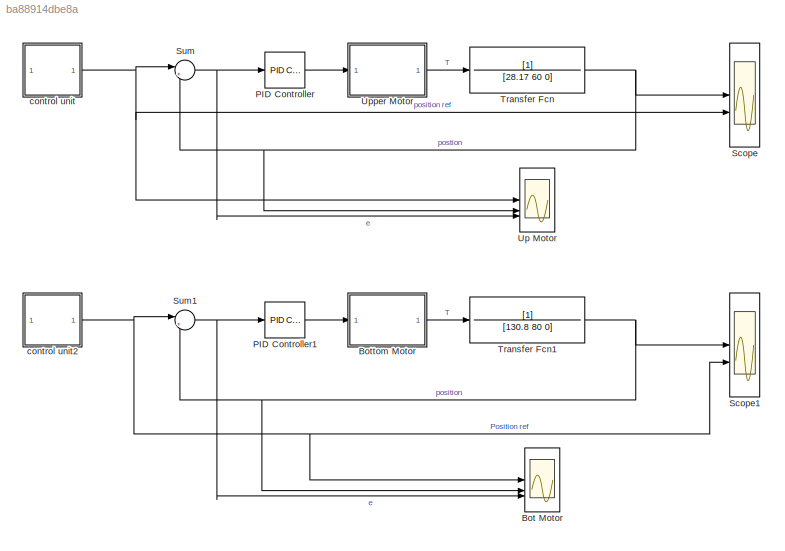
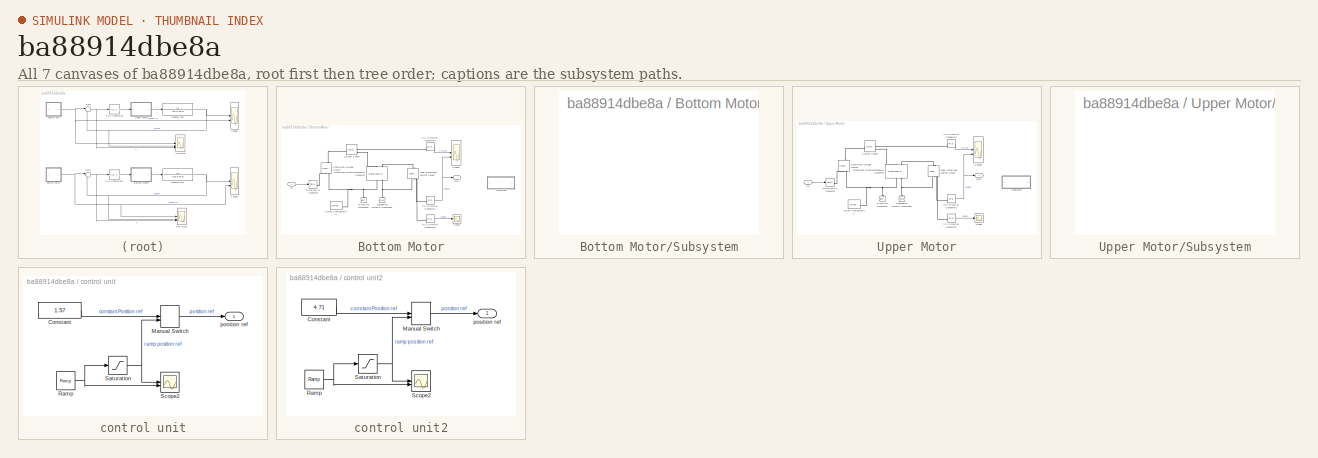
[diagram: thumbnail index - all 7 canvases of the model, root first then tree order]
MODEL slx_ba88914dbe8a
KIND model
CONFIG AbsTol = auto
CONFIG EnableMultiTasking = off
CONFIG FixedStep = auto
CONFIG MaxStep = auto
CONFIG MinStep = auto
CONFIG RelTol = 1e-3
CONFIG SampleTimeConstraint = Unconstrained
CONFIG SolverName = VariableStepAuto
CONFIG StartTime = 0.0
CONFIG StopTime = 27
BLOCK [Scope] Bot Motor
  Floating = off
  NumInputPorts = 3
  ScopeSpecificationString = Simulink.scopes.TimeScopeBlockCfg('CurrentConfiguration', extmgr.ConfigurationSet(extmgr.Configuration('Core','General UI',true),extmgr.Configuration('Core','Source UI',true),extmgr.Configuration('Sources','WiredSimulink',true,'DataLoggingVariableName','ScopeData2'),extmgr.Configuration('Visuals','Time Domain',true,'SerializedDisplays',{struct('MinYLimReal','-1.29803','MaxYLimReal','6.00803','YLab...<+1413ch>
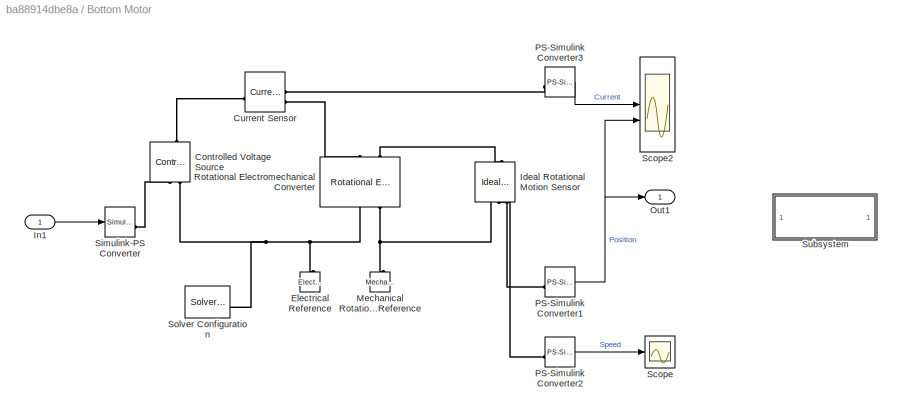
BLOCK [SubSystem] Bottom Motor
BLOCK [Reference] Bottom Motor/Controlled Voltage Source  REF=fl_lib/Electrical/Electrical Sources/Controlled Voltage
Source
  NameLocation = right
  SourceBlock = fl_lib/Electrical/Electrical Sources/Controlled Voltage\nSource
  SourceType = Controlled Voltage\nSource
BLOCK [Reference] Bottom Motor/Current Sensor  REF=fl_lib/Electrical/Electrical Sensors/Current Sensor
  SourceBlock = fl_lib/Electrical/Electrical Sensors/Current Sensor
  SourceType = Current Sensor
BLOCK [Reference] Bottom Motor/Electrical Reference  REF=fl_lib/Electrical/Electrical Elements/Electrical Reference
  NameLocation = right
  SourceBlock = fl_lib/Electrical/Electrical Elements/Electrical Reference
  SourceType = Electrical Reference
BLOCK [Reference] Bottom Motor/Ideal Rotational Motion Sensor  REF=fl_lib/Mechanical/Mechanical Sensors/Ideal Rotational
Motion Sensor
  NameLocation = left
  SourceBlock = fl_lib/Mechanical/Mechanical Sensors/Ideal Rotational\nMotion Sensor
  SourceType = Ideal Rotational\nMotion Sensor
BLOCK [Inport] Bottom Motor/In1
BLOCK [Reference] Bottom Motor/Mechanical Rotational Reference  REF=fl_lib/Mechanical/Rotational Elements/Mechanical
Rotational Reference
  NameLocation = right
  SourceBlock = fl_lib/Mechanical/Rotational Elements/Mechanical\nRotational Reference
  SourceType = Mechanical\nRotational Reference
BLOCK [Outport] Bottom Motor/Out1
  VectorParamsAs1DForOutWhenUnconnected = off
BLOCK [Reference] Bottom Motor/PS-Simulink Converter1  REF=nesl_utility/PS-Simulink
Converter
  SourceBlock = nesl_utility/PS-Simulink\nConverter
  SourceType = PS-Simulink\nConverter
BLOCK [Reference] Bottom Motor/PS-Simulink Converter2  REF=nesl_utility/PS-Simulink
Converter
  SourceBlock = nesl_utility/PS-Simulink\nConverter
  SourceType = PS-Simulink\nConverter
BLOCK [Reference] Bottom Motor/PS-Simulink Converter3  REF=nesl_utility/PS-Simulink
Converter
  SourceBlock = nesl_utility/PS-Simulink\nConverter
  SourceType = PS-Simulink\nConverter
BLOCK [Reference] Bottom Motor/Rotational Electromechanical Converter  REF=fl_lib/Electrical/Electrical Elements/Rotational
Electromechanical
Converter
  NameLocation = right
  SourceBlock = fl_lib/Electrical/Electrical Elements/Rotational\nElectromechanical\nConverter
  SourceType = Rotational\nElectromechanical\nConverter
BLOCK [Scope] Bottom Motor/Scope
  Floating = off
  NumInputPorts = 1
  ScopeSpecificationString = Simulink.scopes.TimeScopeBlockCfg('CurrentConfiguration', extmgr.ConfigurationSet(extmgr.Configuration('Core','General UI',true),extmgr.Configuration('Core','Source UI',true),extmgr.Configuration('Sources','WiredSimulink',true,'DataLoggingVariableName','ScopeData1'),extmgr.Configuration('Visuals','Time Domain',true,'SerializedDisplays',{struct('MinYLimReal','-4.04575','MaxYLimReal','3.50508','YLab...<+1364ch>
BLOCK [Scope] Bottom Motor/Scope2
  Floating = off
  NumInputPorts = 2
  ScopeSpecificationString = Simulink.scopes.TimeScopeBlockCfg('CurrentConfiguration', extmgr.ConfigurationSet(extmgr.Configuration('Core','General UI',true),extmgr.Configuration('Core','Source UI',true),extmgr.Configuration('Sources','WiredSimulink',true,'DataLoggingVariableName','ScopeData2'),extmgr.Configuration('Visuals','Time Domain',true,'SerializedDisplays',{struct('MinYLimReal','-3.04651','MaxYLimReal','27.4186','YLab...<+1377ch>
BLOCK [Reference] Bottom Motor/Simulink-PS Converter  REF=nesl_utility/Simulink-PS
Converter
  SourceBlock = nesl_utility/Simulink-PS\nConverter
  SourceType = Simulink-PS\nConverter
BLOCK [Reference] Bottom Motor/Solver Configuration  REF=nesl_utility/Solver
Configuration
  SourceBlock = nesl_utility/Solver\nConfiguration
  SourceType = Solver\nConfiguration
BLOCK [SubSystem] Bottom Motor/Subsystem
  OpenFcn = open_system('simscape')
  ShowPortLabels = none
BLOCK [Reference] PID Controller  REF=slpidlib/PID Controller
  SourceBlock = slpidlib/PID Controller
  SourceType = PID 1dof
BLOCK [Reference] PID Controller1  REF=slpidlib/PID Controller
  SourceBlock = slpidlib/PID Controller
  SourceType = PID 1dof
BLOCK [Scope] Scope
  Floating = off
  NumInputPorts = 2
  ScopeSpecificationString = Simulink.scopes.TimeScopeBlockCfg('CurrentConfiguration', extmgr.ConfigurationSet(extmgr.Configuration('Core','General UI',true),extmgr.Configuration('Core','Source UI',true),extmgr.Configuration('Sources','WiredSimulink',true),extmgr.Configuration('Visuals','Time Domain',true,'SerializedDisplays',{struct('MinYLimReal','-0.21441','MaxYLimReal','1.9297','YLabelReal','','MinYLimMag','0.00000','MaxYL...<+1365ch>
BLOCK [Scope] Scope1
  Floating = off
  NumInputPorts = 2
  ScopeSpecificationString = Simulink.scopes.TimeScopeBlockCfg('CurrentConfiguration', extmgr.ConfigurationSet(extmgr.Configuration('Core','General UI',true),extmgr.Configuration('Core','Source UI',true),extmgr.Configuration('Sources','WiredSimulink',true,'DataLoggingVariableName','ScopeData1'),extmgr.Configuration('Visuals','Time Domain',true,'SerializedDisplays',{struct('MinYLimReal','-0.65968','MaxYLimReal','5.9371','YLabe...<+1405ch>
BLOCK [Sum] Sum
  Inputs = |+-
BLOCK [Sum] Sum1
  Inputs = |+-
BLOCK [TransferFcn] Transfer Fcn
  Denominator = [28.17 60 0]
BLOCK [TransferFcn] Transfer Fcn1
  Denominator = [130.8 80 0]
BLOCK [Scope] Up Motor
  Floating = off
  NumInputPorts = 3
  ScopeSpecificationString = Simulink.scopes.TimeScopeBlockCfg('CurrentConfiguration', extmgr.ConfigurationSet(extmgr.Configuration('Core','General UI',true),extmgr.Configuration('Core','Source UI',true),extmgr.Configuration('Sources','WiredSimulink',true,'DataLoggingVariableName','ScopeData2'),extmgr.Configuration('Visuals','Time Domain',true,'SerializedDisplays',{struct('MinYLimReal','-0.37786','MaxYLimReal','1.94786','YLab...<+1437ch>
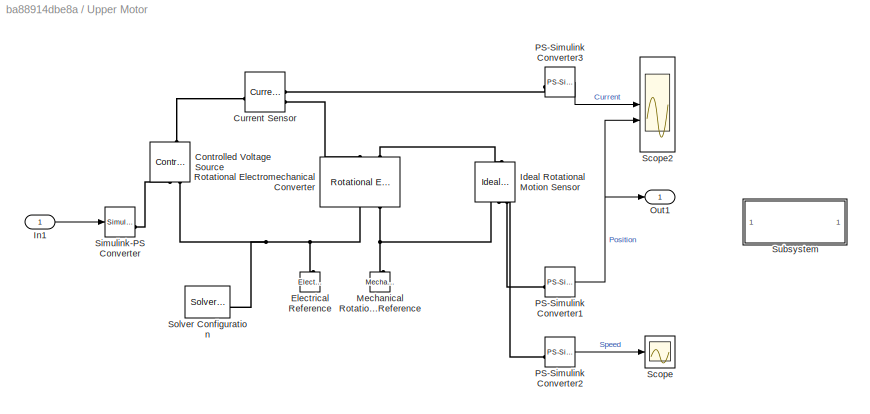
BLOCK [SubSystem] Upper Motor
BLOCK [Reference] Upper Motor/Controlled Voltage Source  REF=fl_lib/Electrical/Electrical Sources/Controlled Voltage
Source
  NameLocation = right
  SourceBlock = fl_lib/Electrical/Electrical Sources/Controlled Voltage\nSource
  SourceType = Controlled Voltage\nSource
BLOCK [Reference] Upper Motor/Current Sensor  REF=fl_lib/Electrical/Electrical Sensors/Current Sensor
  SourceBlock = fl_lib/Electrical/Electrical Sensors/Current Sensor
  SourceType = Current Sensor
BLOCK [Reference] Upper Motor/Electrical Reference  REF=fl_lib/Electrical/Electrical Elements/Electrical Reference
  NameLocation = right
  SourceBlock = fl_lib/Electrical/Electrical Elements/Electrical Reference
  SourceType = Electrical Reference
BLOCK [Reference] Upper Motor/Ideal Rotational Motion Sensor  REF=fl_lib/Mechanical/Mechanical Sensors/Ideal Rotational
Motion Sensor
  NameLocation = left
  SourceBlock = fl_lib/Mechanical/Mechanical Sensors/Ideal Rotational\nMotion Sensor
  SourceType = Ideal Rotational\nMotion Sensor
BLOCK [Inport] Upper Motor/In1
BLOCK [Reference] Upper Motor/Mechanical Rotational Reference  REF=fl_lib/Mechanical/Rotational Elements/Mechanical
Rotational Reference
  NameLocation = right
  SourceBlock = fl_lib/Mechanical/Rotational Elements/Mechanical\nRotational Reference
  SourceType = Mechanical\nRotational Reference
BLOCK [Outport] Upper Motor/Out1
  VectorParamsAs1DForOutWhenUnconnected = off
BLOCK [Reference] Upper Motor/PS-Simulink Converter1  REF=nesl_utility/PS-Simulink
Converter
  SourceBlock = nesl_utility/PS-Simulink\nConverter
  SourceType = PS-Simulink\nConverter
BLOCK [Reference] Upper Motor/PS-Simulink Converter2  REF=nesl_utility/PS-Simulink
Converter
  SourceBlock = nesl_utility/PS-Simulink\nConverter
  SourceType = PS-Simulink\nConverter
BLOCK [Reference] Upper Motor/PS-Simulink Converter3  REF=nesl_utility/PS-Simulink
Converter
  SourceBlock = nesl_utility/PS-Simulink\nConverter
  SourceType = PS-Simulink\nConverter
BLOCK [Reference] Upper Motor/Rotational Electromechanical Converter  REF=fl_lib/Electrical/Electrical Elements/Rotational
Electromechanical
Converter
  NameLocation = right
  SourceBlock = fl_lib/Electrical/Electrical Elements/Rotational\nElectromechanical\nConverter
  SourceType = Rotational\nElectromechanical\nConverter
BLOCK [Scope] Upper Motor/Scope
  Floating = off
  NumInputPorts = 1
  ScopeSpecificationString = Simulink.scopes.TimeScopeBlockCfg('CurrentConfiguration', extmgr.ConfigurationSet(extmgr.Configuration('Core','General UI',true),extmgr.Configuration('Core','Source UI',true),extmgr.Configuration('Sources','WiredSimulink',true,'DataLoggingVariableName','ScopeData1'),extmgr.Configuration('Visuals','Time Domain',true,'SerializedDisplays',{struct('MinYLimReal','-3090.84958','MaxYLimReal','26337.95028...<+1390ch>
BLOCK [Scope] Upper Motor/Scope2
  Floating = off
  NumInputPorts = 2
  ScopeSpecificationString = Simulink.scopes.TimeScopeBlockCfg('CurrentConfiguration', extmgr.ConfigurationSet(extmgr.Configuration('Core','General UI',true),extmgr.Configuration('Core','Source UI',true),extmgr.Configuration('Sources','WiredSimulink',true,'DataLoggingVariableName','ScopeData2'),extmgr.Configuration('Visuals','Time Domain',true,'SerializedDisplays',{struct('MinYLimReal','-78.78746','MaxYLimReal','166.13849','Y...<+1414ch>
BLOCK [Reference] Upper Motor/Simulink-PS Converter  REF=nesl_utility/Simulink-PS
Converter
  SourceBlock = nesl_utility/Simulink-PS\nConverter
  SourceType = Simulink-PS\nConverter
BLOCK [Reference] Upper Motor/Solver Configuration  REF=nesl_utility/Solver
Configuration
  SourceBlock = nesl_utility/Solver\nConfiguration
  SourceType = Solver\nConfiguration
BLOCK [SubSystem] Upper Motor/Subsystem
  OpenFcn = open_system('simscape')
  ShowPortLabels = none
BLOCK [SubSystem] control unit
BLOCK [Constant] control unit/Constant
  Value = 1.57
BLOCK [ManualSwitch] control unit/Manual Switch
BLOCK [Reference] control unit/Ramp  REF=simulink/Sources/Ramp
  SourceBlock = simulink/Sources/Ramp
  SourceType = Ramp
BLOCK [Saturate] control unit/Saturation
  LowerLimit = 0.5
  UpperLimit = 1.5
BLOCK [Scope] control unit/Scope2
  Floating = off
  NumInputPorts = 2
  ScopeSpecificationString = Simulink.scopes.TimeScopeBlockCfg('CurrentConfiguration', extmgr.ConfigurationSet(extmgr.Configuration('Core','General UI',true),extmgr.Configuration('Core','Source UI',true),extmgr.Configuration('Sources','WiredSimulink',true,'DataLoggingVariableName','ScopeData1'),extmgr.Configuration('Visuals','Time Domain',true,'SerializedDisplays',{struct('MinYLimReal','-1.21875','MaxYLimReal','10.96875','YLa...<+1459ch>
BLOCK [Outport] control unit/position ref
  VectorParamsAs1DForOutWhenUnconnected = off
BLOCK [SubSystem] control unit2
BLOCK [Constant] control unit2/Constant
  Value = 4.71
BLOCK [ManualSwitch] control unit2/Manual Switch
BLOCK [Reference] control unit2/Ramp  REF=simulink/Sources/Ramp
  SourceBlock = simulink/Sources/Ramp
  SourceType = Ramp
BLOCK [Saturate] control unit2/Saturation
  LowerLimit = 0.5
  UpperLimit = 1.5
BLOCK [Scope] control unit2/Scope2
  Floating = off
  NumInputPorts = 2
  ScopeSpecificationString = Simulink.scopes.TimeScopeBlockCfg('CurrentConfiguration', extmgr.ConfigurationSet(extmgr.Configuration('Core','General UI',true),extmgr.Configuration('Core','Source UI',true),extmgr.Configuration('Sources','WiredSimulink',true,'DataLoggingVariableName','ScopeData1'),extmgr.Configuration('Visuals','Time Domain',true,'SerializedDisplays',{struct('MinYLimReal','-8.125','MaxYLimReal','73.125','YLabelR...<+1447ch>
BLOCK [Outport] control unit2/position ref
  VectorParamsAs1DForOutWhenUnconnected = off
LINE Bottom Motor/In1:1 -> Bottom Motor/Simulink-PS Converter:1
NET Bottom Motor/PS-Simulink Converter1:1 -> Bottom Motor/Out1:1, Bottom Motor/Scope2:2
LINE Bottom Motor/PS-Simulink Converter2:1 -> Bottom Motor/Scope:1
LINE Bottom Motor/PS-Simulink Converter3:1 -> Bottom Motor/Scope2:1
LINE Bottom Motor:1 -> Transfer Fcn1:1
LINE PID Controller1:1 -> Bottom Motor:1
LINE PID Controller:1 -> Upper Motor:1
NET Sum1:1 -> Bot Motor:3, PID Controller1:1
NET Sum:1 -> PID Controller:1, Up Motor:3
NET Transfer Fcn1:1 -> Bot Motor:2, Scope1:1, Sum1:2
NET Transfer Fcn:1 -> Scope:1, Sum:2, Up Motor:2
LINE Upper Motor/In1:1 -> Upper Motor/Simulink-PS Converter:1
NET Upper Motor/PS-Simulink Converter1:1 -> Upper Motor/Out1:1, Upper Motor/Scope2:2
LINE Upper Motor/PS-Simulink Converter2:1 -> Upper Motor/Scope:1
LINE Upper Motor/PS-Simulink Converter3:1 -> Upper Motor/Scope2:1
LINE Upper Motor:1 -> Transfer Fcn:1
LINE control unit/Constant:1 -> control unit/Manual Switch:1
LINE control unit/Manual Switch:1 -> control unit/position ref:1
NET control unit/Ramp:1 -> control unit/Saturation:1, control unit/Scope2:2
NET control unit/Saturation:1 -> control unit/Manual Switch:2, control unit/Scope2:1
LINE control unit2/Constant:1 -> control unit2/Manual Switch:1
LINE control unit2/Manual Switch:1 -> control unit2/position ref:1
NET control unit2/Ramp:1 -> control unit2/Saturation:1, control unit2/Scope2:2
NET control unit2/Saturation:1 -> control unit2/Manual Switch:2, control unit2/Scope2:1
NET control unit2:1 -> Bot Motor:1, Scope1:2, Sum1:1
NET control unit:1 -> Scope:2, Sum:1, Up Motor:1
PLINE Bottom Motor/Controlled Voltage Source:LConn1 -- Bottom Motor/Current Sensor:LConn1
PLINE Bottom Motor/Controlled Voltage Source:RConn1 -- Bottom Motor/Simulink-PS Converter:RConn1
PNET net1: Bottom Motor/Controlled Voltage Source:RConn2 -- Bottom Motor/Electrical Reference:LConn1 -- Bottom Motor/Rotational Electromechanical Converter:RConn1 -- Bottom Motor/Solver Configuration:RConn1
PLINE Bottom Motor/Current Sensor:RConn1 -- Bottom Motor/PS-Simulink Converter3:LConn1
PLINE Bottom Motor/Current Sensor:RConn2 -- Bottom Motor/Rotational Electromechanical Converter:LConn1
PLINE Bottom Motor/Ideal Rotational Motion Sensor:LConn1 -- Bottom Motor/Rotational Electromechanical Converter:LConn2
PNET net2: Bottom Motor/Ideal Rotational Motion Sensor:RConn1 -- Bottom Motor/Mechanical Rotational Reference:LConn1 -- Bottom Motor/Rotational Electromechanical Converter:RConn2
PLINE Bottom Motor/Ideal Rotational Motion Sensor:RConn2 -- Bottom Motor/PS-Simulink Converter2:LConn1
PLINE Bottom Motor/Ideal Rotational Motion Sensor:RConn3 -- Bottom Motor/PS-Simulink Converter1:LConn1
PLINE Upper Motor/Controlled Voltage Source:LConn1 -- Upper Motor/Current Sensor:LConn1
PLINE Upper Motor/Controlled Voltage Source:RConn1 -- Upper Motor/Simulink-PS Converter:RConn1
PNET net3: Upper Motor/Controlled Voltage Source:RConn2 -- Upper Motor/Electrical Reference:LConn1 -- Upper Motor/Rotational Electromechanical Converter:RConn1 -- Upper Motor/Solver Configuration:RConn1
PLINE Upper Motor/Current Sensor:RConn1 -- Upper Motor/PS-Simulink Converter3:LConn1
PLINE Upper Motor/Current Sensor:RConn2 -- Upper Motor/Rotational Electromechanical Converter:LConn1
PLINE Upper Motor/Ideal Rotational Motion Sensor:LConn1 -- Upper Motor/Rotational Electromechanical Converter:LConn2
PNET net4: Upper Motor/Ideal Rotational Motion Sensor:RConn1 -- Upper Motor/Mechanical Rotational Reference:LConn1 -- Upper Motor/Rotational Electromechanical Converter:RConn2
PLINE Upper Motor/Ideal Rotational Motion Sensor:RConn2 -- Upper Motor/PS-Simulink Converter2:LConn1
PLINE Upper Motor/Ideal Rotational Motion Sensor:RConn3 -- Upper Motor/PS-Simulink Converter1:LConn1
note: NET lines group one-source signal fan-out (src -> all destinations, sorted); 1:1 wires keep LINE; PNET lines group multi-terminal physical nets as a canonical sorted terminal list (undirected conserving connections); 2-terminal nets keep the pairwise PLINE form
